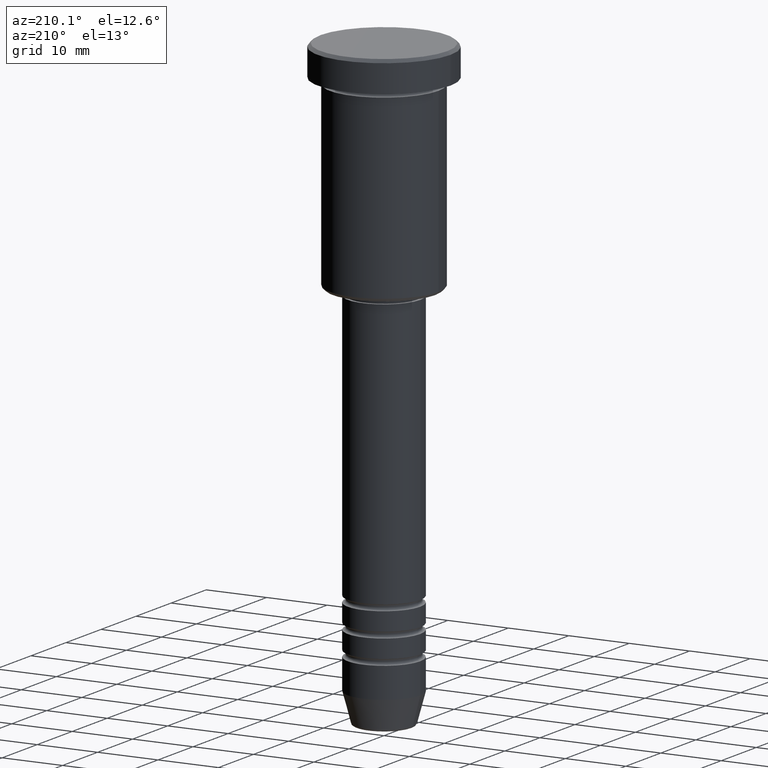
[diagram: clean part render]
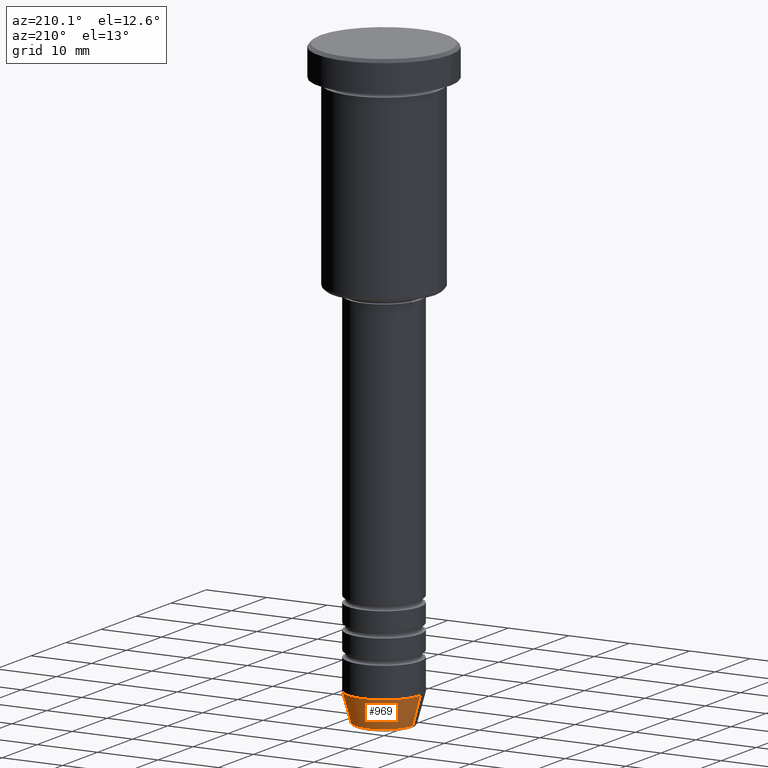
[diagram: same view with one face highlighted and labeled with its STEP entity id]
A machine part, auxiliary view. The second image highlights one B-rep face of the part: STEP entity #969.
In plain terms, the highlighted conical surface has half-angle 15 deg.
Its self-contained STEP definition (entity closure, byte-faithful):
#13 = DIRECTION ( 'NONE',  ( -0.000000000000000000, -0.000000000000000000, 1.000000000000000000 ) ) ;
#49 = CARTESIAN_POINT ( 'NONE',  ( 4.759553456999436882, 0.000000000000000000, -99.62940952255127058 ) ) ;
#66 = CARTESIAN_POINT ( 'NONE',  ( 0.000000000000000000, 0.000000000000000000, -95.00000000000000000 ) ) ;
#79 = DIRECTION ( 'NONE',  ( 0.2588190451025213501, 0.000000000000000000, 0.9659258262890680902 ) ) ;
#124 = LINE ( 'NONE', #409, #934 ) ;
#181 = VECTOR ( 'NONE', #79, 1000.000000000000000 ) ;
#191 = CARTESIAN_POINT ( 'NONE',  ( 6.000000000000000000, 0.000000000000000000, -95.00000000000000000 ) ) ;
#196 = VERTEX_POINT ( 'NONE', #698 ) ;
#287 = FACE_OUTER_BOUND ( 'NONE', #369, .T. ) ;
#353 = DIRECTION ( 'NONE',  ( 1.000000000000000000, 0.000000000000000000, 0.000000000000000000 ) ) ;
#360 = CIRCLE ( 'NONE', #1032, 6.000000000000000000 ) ;
#369 = EDGE_LOOP ( 'NONE', ( #401, #902, #464, #480 ) ) ;
#389 = DIRECTION ( 'NONE',  ( 1.000000000000000000, 0.000000000000000000, 0.000000000000000000 ) ) ;
#401 = ORIENTED_EDGE ( 'NONE', *, *, #685, .T. ) ;
#409 = CARTESIAN_POINT ( 'NONE',  ( -6.000000000000000000, 7.347880794884119736E-16, -95.00000000000000000 ) ) ;
#417 = EDGE_CURVE ( 'NONE', #1064, #196, #124, .T. ) ;
#419 = VERTEX_POINT ( 'NONE', #49 ) ;
#464 = ORIENTED_EDGE ( 'NONE', *, *, #728, .F. ) ;
#480 = ORIENTED_EDGE ( 'NONE', *, *, #639, .F. ) ;
#520 = AXIS2_PLACEMENT_3D ( 'NONE', #563, #13, #389 ) ;
#563 = CARTESIAN_POINT ( 'NONE',  ( 0.000000000000000000, 0.000000000000000000, -95.00000000000000000 ) ) ;
#617 = DIRECTION ( 'NONE',  ( -0.000000000000000000, -0.000000000000000000, 1.000000000000000000 ) ) ;
#626 = CIRCLE ( 'NONE', #887, 4.759553456999436882 ) ;
#628 = CARTESIAN_POINT ( 'NONE',  ( 6.000000000000000000, 0.000000000000000000, -95.00000000000000000 ) ) ;
#639 = EDGE_CURVE ( 'NONE', #419, #848, #893, .T. ) ;
#685 = EDGE_CURVE ( 'NONE', #419, #1064, #626, .T. ) ;
#698 = CARTESIAN_POINT ( 'NONE',  ( -6.000000000000000000, 7.347880794884119736E-16, -95.00000000000000000 ) ) ;
#711 = CONICAL_SURFACE ( 'NONE', #520, 6.000000000000000000, 0.2617993877991500740 ) ;
#728 = EDGE_CURVE ( 'NONE', #848, #196, #360, .T. ) ;
#770 = DIRECTION ( 'NONE',  ( -0.2588190451025213501, 3.169619151431772337E-17, 0.9659258262890680902 ) ) ;
#807 = DIRECTION ( 'NONE',  ( -0.000000000000000000, -0.000000000000000000, 1.000000000000000000 ) ) ;
#848 = VERTEX_POINT ( 'NONE', #191 ) ;
#887 = AXIS2_PLACEMENT_3D ( 'NONE', #1078, #807, #353 ) ;
#893 = LINE ( 'NONE', #628, #181 ) ;
#902 = ORIENTED_EDGE ( 'NONE', *, *, #417, .T. ) ;
#934 = VECTOR ( 'NONE', #770, 1000.000000000000000 ) ;
#969 = ADVANCED_FACE ( 'NONE', ( #287 ), #711, .T. ) ;
#983 = DIRECTION ( 'NONE',  ( 1.000000000000000000, 0.000000000000000000, 0.000000000000000000 ) ) ;
#1032 = AXIS2_PLACEMENT_3D ( 'NONE', #66, #617, #983 ) ;
#1064 = VERTEX_POINT ( 'NONE', #1169 ) ;
#1078 = CARTESIAN_POINT ( 'NONE',  ( 0.000000000000000000, 0.000000000000000000, -99.62940952255127058 ) ) ;
#1169 = CARTESIAN_POINT ( 'NONE',  ( -4.759553456999436882, 6.588326350684601277E-16, -99.62940952255127058 ) ) ;